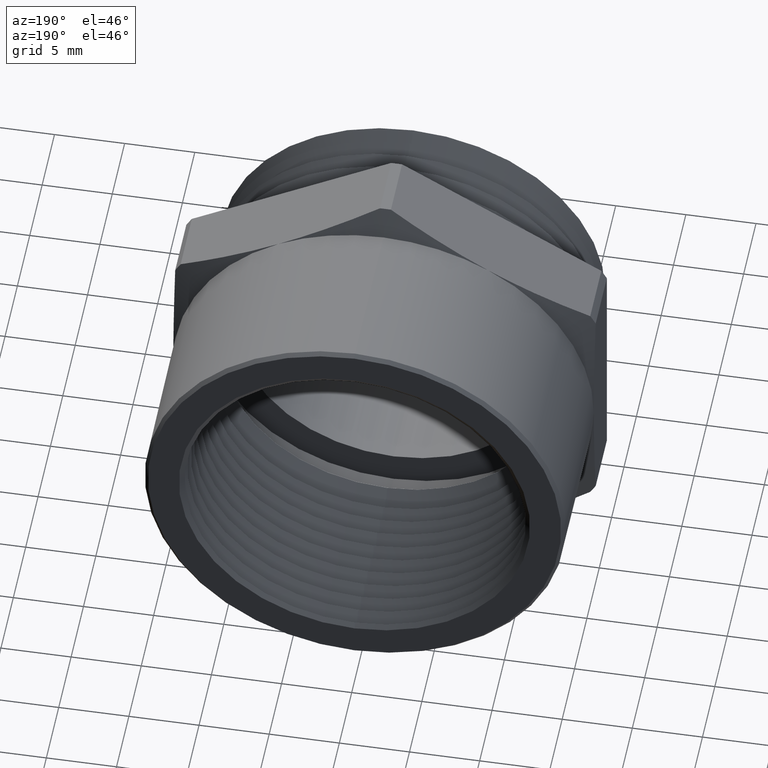
[diagram: clean part render]
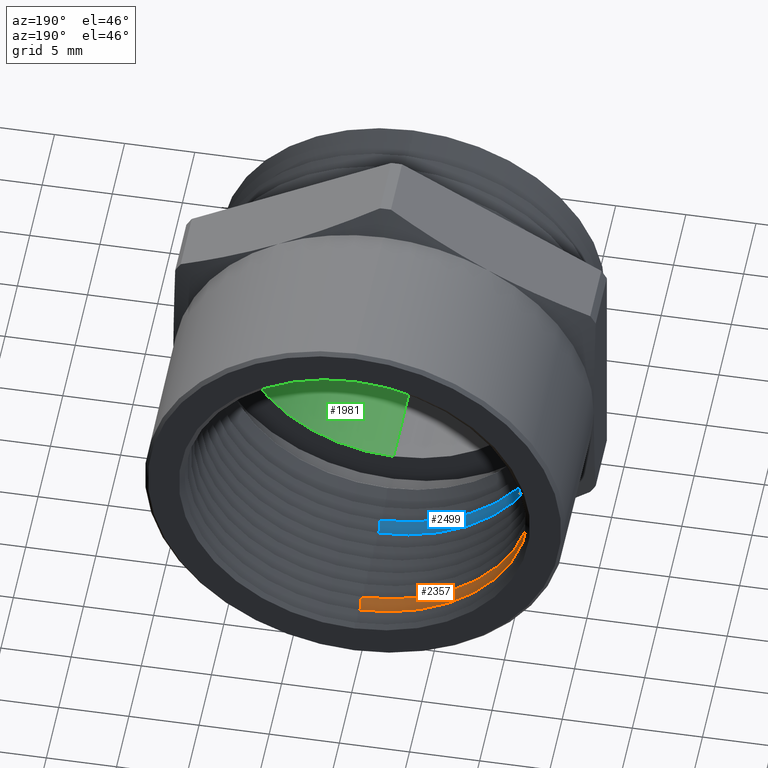
[diagram: same view with three faces highlighted in distinct colors, each labeled with its STEP entity id]
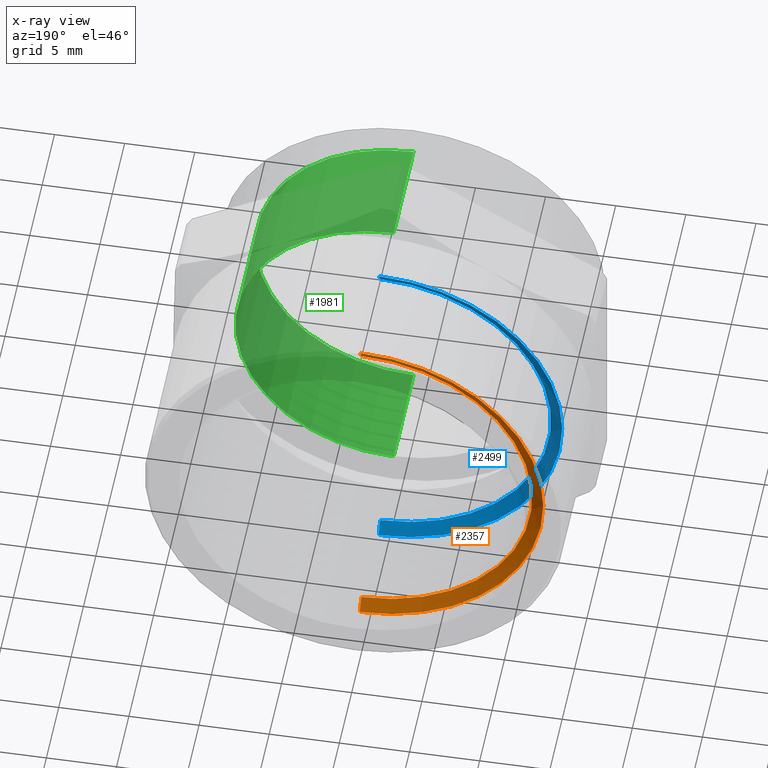
[diagram: x-ray of the same camera — body ghosted, the three highlighted faces saturated]
A machine part, auxiliary view with three faces highlighted in distinct colors.
The next image is the same camera in x-ray (body ghosted, the three faces saturated) — at least one of them is partly hidden behind the body in this view.
Their STEP definitions:

[orange] entity #2357 — the highlighted conical surface has half-angle 56.5 deg.
#869 = DIRECTION ( 'NONE',  ( 0.0000000000000000000, 0.5519369853120628100, 0.8338858220671648800 ) ) ;
#870 = VECTOR ( 'NONE', #869, 39.37007874015748900 ) ;
#871 = CARTESIAN_POINT ( 'NONE',  ( 0.0000000000000000000, 0.8546630311531505700, 0.5150000000000000100 ) ) ;
#872 = LINE ( 'NONE', #871, #870 ) ;
#904 = FACE_OUTER_BOUND ( 'NONE', #2358, .T. ) ;
#917 = DIRECTION ( 'NONE',  ( 0.0000000000000000000, 0.0000000000000000000, -1.000000000000000000 ) ) ;
#918 = DIRECTION ( 'NONE',  ( 0.0000000000000000000, -1.000000000000000000, 0.0000000000000000000 ) ) ;
#919 = CARTESIAN_POINT ( 'NONE',  ( 0.0000000000000000000, 0.8546630311531505700, 0.0000000000000000000 ) ) ;
#920 = AXIS2_PLACEMENT_3D ( 'NONE', #919, #918, #917 ) ;
#921 = CIRCLE ( 'NONE', #920, 0.5150000000000000100 ) ;
#922 = CARTESIAN_POINT ( 'NONE',  ( 0.0000000000000000000, 0.8546630311531505700, -0.5150000000000000100 ) ) ;
#923 = DIRECTION ( 'NONE',  ( 1.021215602848912800E-016, 0.5519369853120628100, -0.8338858220671648800 ) ) ;
#924 = VECTOR ( 'NONE', #923, 39.37007874015748900 ) ;
#925 = CARTESIAN_POINT ( 'NONE',  ( 6.306931015608869800E-017, 0.8546630311531505700, -0.5150000000000000100 ) ) ;
#929 = LINE ( 'NONE', #925, #924 ) ;
#938 = CARTESIAN_POINT ( 'NONE',  ( 6.088532160929966000E-017, 0.8310554001865259100, 0.4793327602977509000 ) ) ;
#939 = CARTESIAN_POINT ( 'NONE',  ( 0.0000000000000000000, 0.8310554001865259100, -0.4793327602977509000 ) ) ;
#940 = DIRECTION ( 'NONE',  ( 0.0000000000000000000, 0.0000000000000000000, 1.000000000000000000 ) ) ;
#941 = DIRECTION ( 'NONE',  ( 0.0000000000000000000, 1.000000000000000000, 0.0000000000000000000 ) ) ;
#942 = CARTESIAN_POINT ( 'NONE',  ( 0.0000000000000000000, 0.8310554001865259100, 0.0000000000000000000 ) ) ;
#943 = AXIS2_PLACEMENT_3D ( 'NONE', #942, #941, #940 ) ;
#944 = CIRCLE ( 'NONE', #943, 0.4793327602977509000 ) ;
#956 = DIRECTION ( 'NONE',  ( 0.0000000000000000000, 0.0000000000000000000, 1.000000000000000000 ) ) ;
#957 = DIRECTION ( 'NONE',  ( 0.0000000000000000000, 1.000000000000000000, 0.0000000000000000000 ) ) ;
#958 = CARTESIAN_POINT ( 'NONE',  ( 0.0000000000000000000, 0.8546630311531505700, 0.0000000000000000000 ) ) ;
#959 = AXIS2_PLACEMENT_3D ( 'NONE', #958, #957, #956 ) ;
#961 = CONICAL_SURFACE ( 'NONE', #959, 0.5150000000000000100, 0.9861110273767905700 ) ;
#976 = CARTESIAN_POINT ( 'NONE',  ( 6.306931015608869800E-017, 0.8546630311531505700, 0.5150000000000000100 ) ) ;
#2343 = ORIENTED_EDGE ( 'NONE', *, *, #2344, .F. ) ;
#2344 = EDGE_CURVE ( 'NONE', #2370, #2388, #872, .T. ) ;
#2348 = EDGE_CURVE ( 'NONE', #2369, #2349, #929, .T. ) ;
#2349 = VERTEX_POINT ( 'NONE', #922 ) ;
#2350 = EDGE_CURVE ( 'NONE', #2388, #2349, #921, .T. ) ;
#2352 = ORIENTED_EDGE ( 'NONE', *, *, #2350, .F. ) ;
#2357 = ADVANCED_FACE ( 'NONE', ( #904 ), #961, .F. ) ;
#2358 = EDGE_LOOP ( 'NONE', ( #2367, #2371, #2352, #2343 ) ) ;
#2367 = ORIENTED_EDGE ( 'NONE', *, *, #2368, .F. ) ;
#2368 = EDGE_CURVE ( 'NONE', #2369, #2370, #944, .T. ) ;
#2369 = VERTEX_POINT ( 'NONE', #939 ) ;
#2370 = VERTEX_POINT ( 'NONE', #938 ) ;
#2371 = ORIENTED_EDGE ( 'NONE', *, *, #2348, .T. ) ;
#2388 = VERTEX_POINT ( 'NONE', #976 ) ;

[blue] entity #2499 — the highlighted conical surface has half-angle 56.5 deg.
#126 = CARTESIAN_POINT ( 'NONE',  ( 0.0000000000000000000, 0.5546630311531506300, -0.5150000000000000100 ) ) ;
#127 = DIRECTION ( 'NONE',  ( 1.021215602848912800E-016, 0.5519369853120628100, -0.8338858220671648800 ) ) ;
#128 = VECTOR ( 'NONE', #127, 39.37007874015748900 ) ;
#129 = CARTESIAN_POINT ( 'NONE',  ( 6.306931015608869800E-017, 0.5546630311531506300, -0.5150000000000000100 ) ) ;
#130 = LINE ( 'NONE', #129, #128 ) ;
#1171 = CARTESIAN_POINT ( 'NONE',  ( 6.306931015608869800E-017, 0.5546630311531506300, 0.5150000000000000100 ) ) ;
#1172 = DIRECTION ( 'NONE',  ( 0.0000000000000000000, 0.0000000000000000000, -1.000000000000000000 ) ) ;
#1173 = DIRECTION ( 'NONE',  ( 0.0000000000000000000, -1.000000000000000000, 0.0000000000000000000 ) ) ;
#1174 = CARTESIAN_POINT ( 'NONE',  ( 0.0000000000000000000, 0.5546630311531506300, 0.0000000000000000000 ) ) ;
#1175 = AXIS2_PLACEMENT_3D ( 'NONE', #1174, #1173, #1172 ) ;
#1176 = CIRCLE ( 'NONE', #1175, 0.5150000000000000100 ) ;
#1180 = CARTESIAN_POINT ( 'NONE',  ( 0.0000000000000000000, 0.5546630311531506300, 0.0000000000000000000 ) ) ;
#1181 = CONICAL_SURFACE ( 'NONE', #1241, 0.5150000000000000100, 0.9861110273767905700 ) ;
#1182 = FACE_OUTER_BOUND ( 'NONE', #2531, .T. ) ;
#1239 = DIRECTION ( 'NONE',  ( 0.0000000000000000000, 0.0000000000000000000, 1.000000000000000000 ) ) ;
#1240 = DIRECTION ( 'NONE',  ( 0.0000000000000000000, 1.000000000000000000, 0.0000000000000000000 ) ) ;
#1241 = AXIS2_PLACEMENT_3D ( 'NONE', #1180, #1240, #1239 ) ;
#1252 = DIRECTION ( 'NONE',  ( 0.0000000000000000000, 0.5519369853120628100, 0.8338858220671648800 ) ) ;
#1253 = VECTOR ( 'NONE', #1252, 39.37007874015748900 ) ;
#1254 = CARTESIAN_POINT ( 'NONE',  ( 0.0000000000000000000, 0.5546630311531506300, 0.5150000000000000100 ) ) ;
#1255 = LINE ( 'NONE', #1254, #1253 ) ;
#1287 = CARTESIAN_POINT ( 'NONE',  ( 6.088532160929966000E-017, 0.5310554001865259700, 0.4793327602977509600 ) ) ;
#1288 = CARTESIAN_POINT ( 'NONE',  ( 0.0000000000000000000, 0.5310554001865259700, -0.4793327602977509600 ) ) ;
#1289 = DIRECTION ( 'NONE',  ( 0.0000000000000000000, 0.0000000000000000000, 1.000000000000000000 ) ) ;
#1290 = DIRECTION ( 'NONE',  ( 0.0000000000000000000, 1.000000000000000000, 0.0000000000000000000 ) ) ;
#1291 = CARTESIAN_POINT ( 'NONE',  ( 0.0000000000000000000, 0.5310554001865259700, 0.0000000000000000000 ) ) ;
#1292 = AXIS2_PLACEMENT_3D ( 'NONE', #1291, #1290, #1289 ) ;
#1293 = CIRCLE ( 'NONE', #1292, 0.4793327602977509600 ) ;
#1836 = ORIENTED_EDGE ( 'NONE', *, *, #1838, .T. ) ;
#1838 = EDGE_CURVE ( 'NONE', #2541, #1839, #130, .T. ) ;
#1839 = VERTEX_POINT ( 'NONE', #126 ) ;
#2469 = ORIENTED_EDGE ( 'NONE', *, *, #2470, .F. ) ;
#2470 = EDGE_CURVE ( 'NONE', #2471, #1839, #1176, .T. ) ;
#2471 = VERTEX_POINT ( 'NONE', #1171 ) ;
#2499 = ADVANCED_FACE ( 'NONE', ( #1182 ), #1181, .F. ) ;
#2502 = ORIENTED_EDGE ( 'NONE', *, *, #2540, .F. ) ;
#2525 = EDGE_CURVE ( 'NONE', #2542, #2471, #1255, .T. ) ;
#2531 = EDGE_LOOP ( 'NONE', ( #2502, #1836, #2469, #2543 ) ) ;
#2540 = EDGE_CURVE ( 'NONE', #2541, #2542, #1293, .T. ) ;
#2541 = VERTEX_POINT ( 'NONE', #1288 ) ;
#2542 = VERTEX_POINT ( 'NONE', #1287 ) ;
#2543 = ORIENTED_EDGE ( 'NONE', *, *, #2525, .F. ) ;

[green] entity #1981 — the highlighted cylindrical surface (partial cylindrical patch) has radius 11.2776 mm, axis along (0, -1, 0).
#115 = DIRECTION ( 'NONE',  ( 0.0000000000000000000, -1.000000000000000000, 0.0000000000000000000 ) ) ;
#116 = VECTOR ( 'NONE', #115, 39.37007874015748100 ) ;
#117 = CARTESIAN_POINT ( 'NONE',  ( 5.437431788214249100E-017, 0.0000000000000000000, 0.4440000000000001200 ) ) ;
#118 = LINE ( 'NONE', #117, #116 ) ;
#119 = CARTESIAN_POINT ( 'NONE',  ( 5.437431788214248500E-017, 0.3170000000000000000, 0.4440000000000000100 ) ) ;
#120 = CARTESIAN_POINT ( 'NONE',  ( 0.0000000000000000000, 0.3170000000000000000, -0.4440000000000000100 ) ) ;
#139 = CARTESIAN_POINT ( 'NONE',  ( 0.0000000000000000000, 0.0000000000000000000, -0.4440000000000001200 ) ) ;
#142 = CARTESIAN_POINT ( 'NONE',  ( 5.437431788214249100E-017, 0.0000000000000000000, 0.4440000000000001200 ) ) ;
#394 = DIRECTION ( 'NONE',  ( 0.0000000000000000000, 0.0000000000000000000, -1.000000000000000000 ) ) ;
#395 = DIRECTION ( 'NONE',  ( 0.0000000000000000000, -1.000000000000000000, 0.0000000000000000000 ) ) ;
#396 = CARTESIAN_POINT ( 'NONE',  ( 0.0000000000000000000, 0.3170000000000000000, 0.0000000000000000000 ) ) ;
#397 = AXIS2_PLACEMENT_3D ( 'NONE', #396, #395, #394 ) ;
#398 = DIRECTION ( 'NONE',  ( 0.0000000000000000000, 0.0000000000000000000, -1.000000000000000000 ) ) ;
#399 = DIRECTION ( 'NONE',  ( 0.0000000000000000000, -1.000000000000000000, 0.0000000000000000000 ) ) ;
#400 = CARTESIAN_POINT ( 'NONE',  ( 0.0000000000000000000, 0.0000000000000000000, 0.0000000000000000000 ) ) ;
#401 = AXIS2_PLACEMENT_3D ( 'NONE', #400, #399, #398 ) ;
#402 = CIRCLE ( 'NONE', #397, 0.4440000000000000100 ) ;
#403 = CYLINDRICAL_SURFACE ( 'NONE', #401, 0.4440000000000001200 ) ;
#404 = FACE_OUTER_BOUND ( 'NONE', #1913, .T. ) ;
#670 = DIRECTION ( 'NONE',  ( 0.0000000000000000000, -1.000000000000000000, 0.0000000000000000000 ) ) ;
#671 = VECTOR ( 'NONE', #670, 39.37007874015748100 ) ;
#672 = CARTESIAN_POINT ( 'NONE',  ( 0.0000000000000000000, 0.0000000000000000000, -0.4440000000000001200 ) ) ;
#673 = LINE ( 'NONE', #672, #671 ) ;
#1475 = DIRECTION ( 'NONE',  ( 0.0000000000000000000, 0.0000000000000000000, -1.000000000000000000 ) ) ;
#1476 = DIRECTION ( 'NONE',  ( 0.0000000000000000000, -1.000000000000000000, 0.0000000000000000000 ) ) ;
#1477 = CARTESIAN_POINT ( 'NONE',  ( 0.0000000000000000000, 0.0000000000000000000, 0.0000000000000000000 ) ) ;
#1478 = AXIS2_PLACEMENT_3D ( 'NONE', #1477, #1476, #1475 ) ;
#1483 = CIRCLE ( 'NONE', #1478, 0.4440000000000001200 ) ;
#1829 = VERTEX_POINT ( 'NONE', #142 ) ;
#1835 = VERTEX_POINT ( 'NONE', #139 ) ;
#1842 = VERTEX_POINT ( 'NONE', #120 ) ;
#1843 = VERTEX_POINT ( 'NONE', #119 ) ;
#1844 = EDGE_CURVE ( 'NONE', #1843, #1829, #118, .T. ) ;
#1913 = EDGE_LOOP ( 'NONE', ( #1982, #1983, #1985, #1930 ) ) ;
#1930 = ORIENTED_EDGE ( 'NONE', *, *, #2640, .T. ) ;
#1981 = ADVANCED_FACE ( 'NONE', ( #404 ), #403, .F. ) ;
#1982 = ORIENTED_EDGE ( 'NONE', *, *, #1844, .F. ) ;
#1983 = ORIENTED_EDGE ( 'NONE', *, *, #1984, .F. ) ;
#1984 = EDGE_CURVE ( 'NONE', #1842, #1843, #402, .T. ) ;
#1985 = ORIENTED_EDGE ( 'NONE', *, *, #2220, .T. ) ;
#2220 = EDGE_CURVE ( 'NONE', #1842, #1835, #673, .T. ) ;
#2640 = EDGE_CURVE ( 'NONE', #1835, #1829, #1483, .T. ) ;